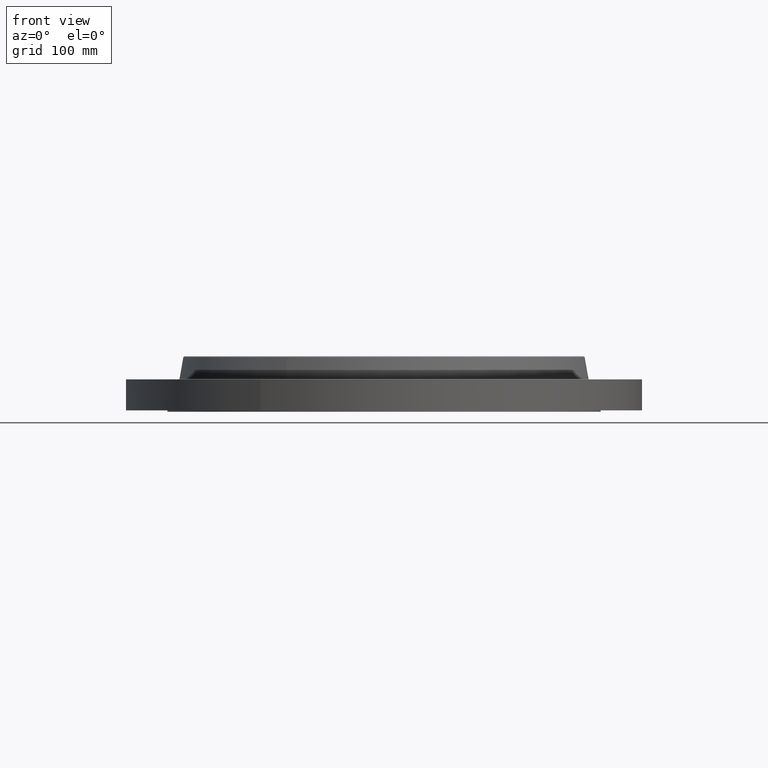
[diagram: clean part render]
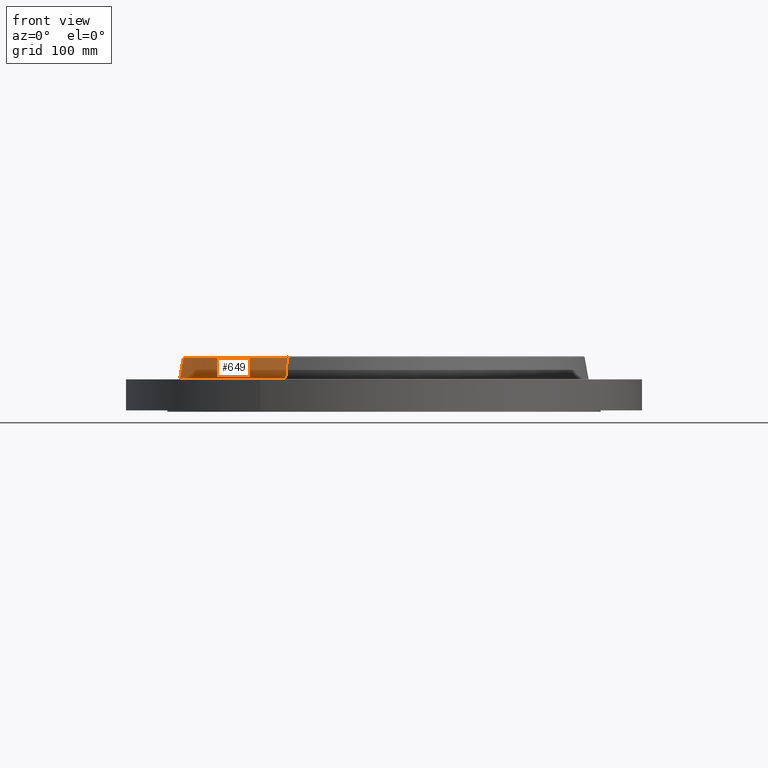
[diagram: same view with one face highlighted and labeled with its STEP entity id]
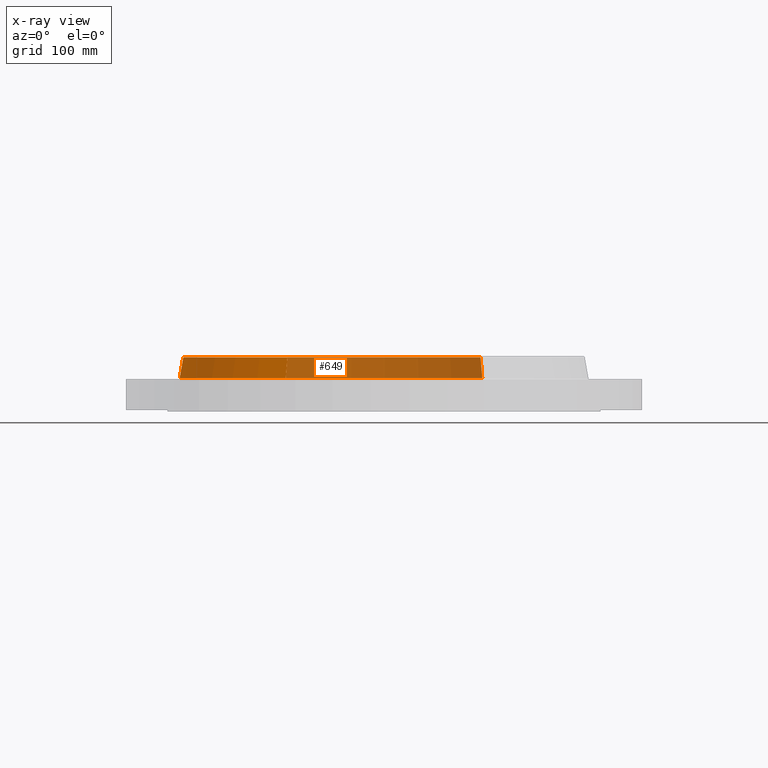
[diagram: x-ray of the same camera — body ghosted, the highlighted face saturated]
A machine part, front view. The second image highlights one B-rep face of the part: STEP entity #649.
The next image is the same camera in x-ray: the body ghosted, the highlighted face saturated — about 65% of this face is hidden behind the body in this view.
In plain terms, the highlighted conical surface has half-angle 10 deg.
Its self-contained STEP definition (entity closure, byte-faithful):
#597=AXIS2_PLACEMENT_3D('Circle Axis2P3D',#595,#596,$) ;
#610=AXIS2_PLACEMENT_3D('Cone Axis2P3D',#607,#608,#609) ;
#640=AXIS2_PLACEMENT_3D('Circle Axis2P3D',#638,#639,$) ;
#568=CARTESIAN_POINT('Vertex',(4.76129848206,8.71549841081,1.54958110935)) ;
#575=CARTESIAN_POINT('Vertex',(-4.76129848206,-8.71549841081,1.54958110935)) ;
#595=CARTESIAN_POINT('Axis2P3D Location',(0.,0.,1.54958110935)) ;
#607=CARTESIAN_POINT('Axis2P3D Location',(0.,0.,2.57041889067)) ;
#612=CARTESIAN_POINT('Line Origine',(4.71814988543,8.63651543449,2.06000000001)) ;
#616=CARTESIAN_POINT('Vertex',(4.67500128881,8.55753245816,2.57041889067)) ;
#623=CARTESIAN_POINT('Vertex',(-4.67500128881,-8.55753245816,2.57041889067)) ;
#626=CARTESIAN_POINT('Line Origine',(-4.71814988543,-8.63651543449,2.06000000001)) ;
#638=CARTESIAN_POINT('Axis2P3D Location',(0.,0.,2.57041889067)) ;
#596=DIRECTION('Axis2P3D Direction',(0.,0.,-0.0393700787402)) ;
#608=DIRECTION('Axis2P3D Direction',(0.,0.,-0.0393700787402)) ;
#609=DIRECTION('Axis2P3D XDirection',(-0.0188750212049,-0.0345504945626,0.)) ;
#613=DIRECTION('Vector Direction',(0.00327761303565,0.00599963041829,-0.03877195878)) ;
#627=DIRECTION('Vector Direction',(-0.00327761303565,-0.00599963041829,-0.03877195878)) ;
#639=DIRECTION('Axis2P3D Direction',(0.,0.,-0.0393700787402)) ;
#614=VECTOR('Line Direction',#613,0.0393700787402) ;
#628=VECTOR('Line Direction',#627,0.0393700787402) ;
#644=ORIENTED_EDGE('',*,*,#599,.F.) ;
#645=ORIENTED_EDGE('',*,*,#630,.T.) ;
#646=ORIENTED_EDGE('',*,*,#642,.T.) ;
#647=ORIENTED_EDGE('',*,*,#618,.F.) ;
#649=ADVANCED_FACE('PartBody',(#648),#611,.T.) ;
#598=CIRCLE('generated circle',#597,9.93125751273) ;
#641=CIRCLE('generated circle',#640,9.75125626896) ;
#611=CONICAL_SURFACE('Cone',#610,9.75125626896,0.174532925199) ;
#599=EDGE_CURVE('',#576,#569,#598,.T.) ;
#618=EDGE_CURVE('',#569,#617,#615,.F.) ;
#630=EDGE_CURVE('',#576,#624,#629,.F.) ;
#642=EDGE_CURVE('',#624,#617,#641,.T.) ;
#643=EDGE_LOOP('',(#644,#645,#646,#647)) ;
#648=FACE_OUTER_BOUND('',#643,.T.) ;
#615=LINE('Line',#612,#614) ;
#629=LINE('Line',#626,#628) ;
#569=VERTEX_POINT('',#568) ;
#576=VERTEX_POINT('',#575) ;
#617=VERTEX_POINT('',#616) ;
#624=VERTEX_POINT('',#623) ;